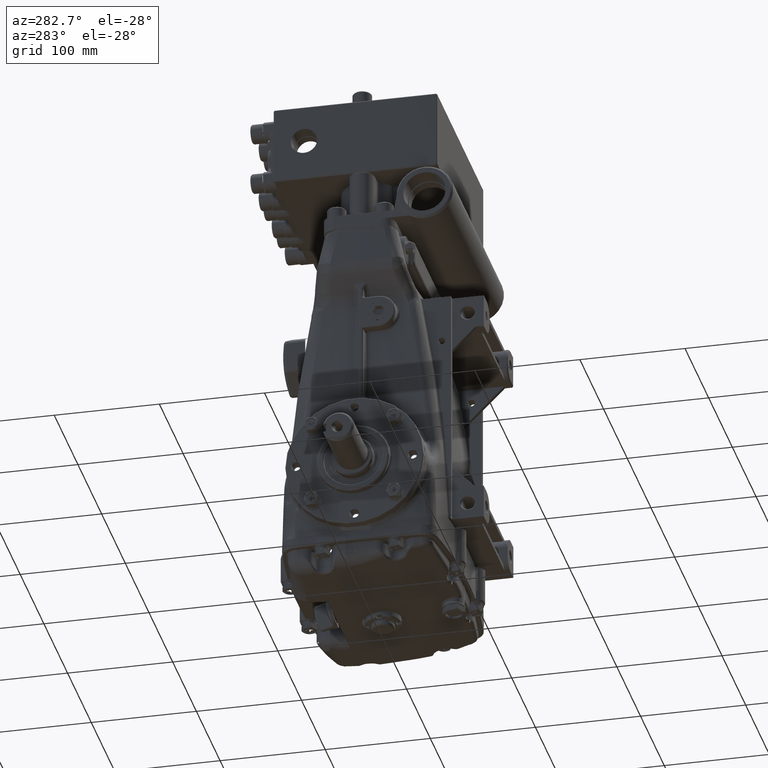
[diagram: clean part render]
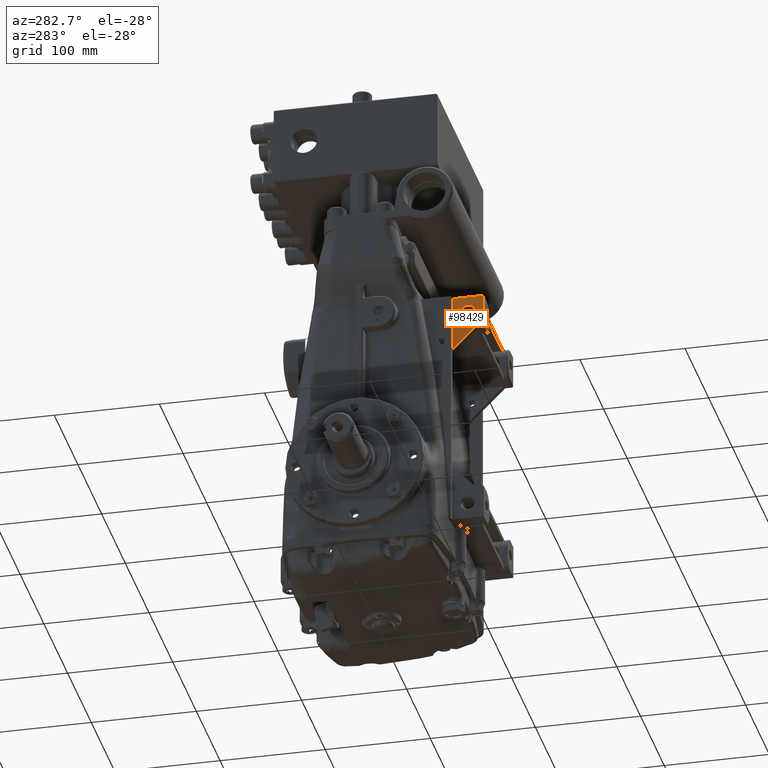
[diagram: same view with one face highlighted and labeled with its STEP entity id]
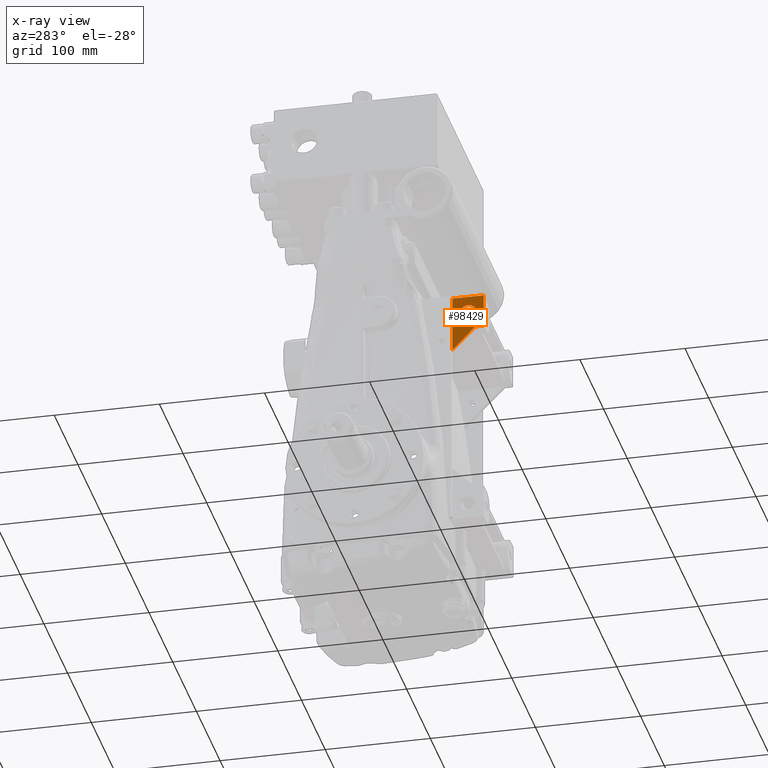
[diagram: x-ray of the same camera — body ghosted, the highlighted face saturated]
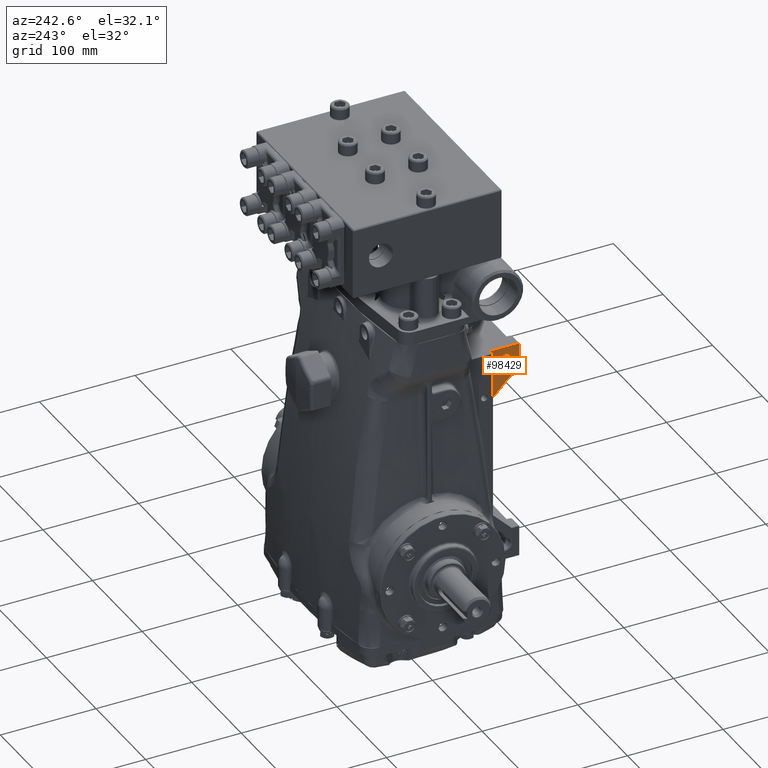
[diagram: same view with one face highlighted and labeled with its STEP entity id]
A machine part, auxiliary view. The second image highlights one B-rep face of the part: STEP entity #98429.
The next image is the same camera in x-ray: the body ghosted, the highlighted face saturated — about 0% of this face is hidden behind the body in this view.
A second angle (auxiliary view) of the same face is appended — the face is thin or edge-on in the first view.
In plain terms, the highlighted planar face has unit normal (1, 0, -0).
Its self-contained STEP definition (entity closure, byte-faithful):
#559 = CIRCLE ( 'NONE', #84390, 0.2952755905511835754 ) ;
#3045 = AXIS2_PLACEMENT_3D ( 'NONE', #100883, #37940, #28499 ) ;
#3377 = VECTOR ( 'NONE', #56254, 39.37007874015748143 ) ;
#5043 = CARTESIAN_POINT ( 'NONE',  ( -2.460629921259842146, -4.015748031495096626, 6.259842519685038909 ) ) ;
#6899 = CARTESIAN_POINT ( 'NONE',  ( -2.460629921259841701, 19685.03937007874265, 7.519685039370078705 ) ) ;
#9830 = DIRECTION ( 'NONE',  ( 1.000000000000000000, 0.000000000000000000, -2.168404344971006649E-16 ) ) ;
#11082 = DIRECTION ( 'NONE',  ( 0.000000000000000000, 0.000000000000000000, -1.000000000000000000 ) ) ;
#12630 = CARTESIAN_POINT ( 'NONE',  ( -2.460629921259841701, -3.740157480314960203, 7.185039370078743381 ) ) ;
#15131 = CIRCLE ( 'NONE', #28586, 0.2952755905511835754 ) ;
#15914 = CARTESIAN_POINT ( 'NONE',  ( -2.460629921259841701, -4.330708661417323135, 7.519685039370078705 ) ) ;
#16074 = EDGE_CURVE ( 'NONE', #47342, #30939, #55712, .T. ) ;
#18343 = EDGE_CURVE ( 'NONE', #41853, #85430, #15131, .T. ) ;
#19809 = EDGE_LOOP ( 'NONE', ( #82258, #37283 ) ) ;
#21651 = FACE_OUTER_BOUND ( 'NONE', #23216, .T. ) ;
#23216 = EDGE_LOOP ( 'NONE', ( #91465, #51589, #92765, #68114, #42954 ) ) ;
#23513 = LINE ( 'NONE', #25599, #100645 ) ;
#25516 = LINE ( 'NONE', #89008, #99954 ) ;
#25599 = CARTESIAN_POINT ( 'NONE',  ( -2.460629921259842590, -4.015748031496062964, 6.259842519685038909 ) ) ;
#28499 = DIRECTION ( 'NONE',  ( -2.168404344971006649E-16, 0.000000000000000000, -1.000000000000000000 ) ) ;
#28586 = AXIS2_PLACEMENT_3D ( 'NONE', #59885, #83003, #11082 ) ;
#29886 = CARTESIAN_POINT ( 'NONE',  ( -2.460629921259842590, -3.149606299212598604, 7.519685039370077817 ) ) ;
#30939 = VERTEX_POINT ( 'NONE', #15914 ) ;
#35411 = CARTESIAN_POINT ( 'NONE',  ( -2.460629921259842590, -3.149606299212598604, 5.393700787402513797 ) ) ;
#37283 = ORIENTED_EDGE ( 'NONE', *, *, #18343, .T. ) ;
#37940 = DIRECTION ( 'NONE',  ( 1.000000000000000000, 0.000000000000000000, -2.168404344971006649E-16 ) ) ;
#41835 = CARTESIAN_POINT ( 'NONE',  ( -2.460629921259842146, 19685.03937007874265, 6.259842519685038909 ) ) ;
#41853 = VERTEX_POINT ( 'NONE', #96268 ) ;
#42954 = ORIENTED_EDGE ( 'NONE', *, *, #94909, .T. ) ;
#47342 = VERTEX_POINT ( 'NONE', #29886 ) ;
#48893 = VECTOR ( 'NONE', #85284, 39.37007874015748143 ) ;
#51589 = ORIENTED_EDGE ( 'NONE', *, *, #86424, .T. ) ;
#53333 = CARTESIAN_POINT ( 'NONE',  ( -2.460629921259842146, -4.330708661417323135, 6.259842519685038909 ) ) ;
#53637 = EDGE_CURVE ( 'NONE', #94836, #101186, #98980, .T. ) ;
#54500 = VECTOR ( 'NONE', #74889, 39.37007874015748143 ) ;
#54672 = PLANE ( 'NONE',  #3045 ) ;
#55411 = VERTEX_POINT ( 'NONE', #35411 ) ;
#55712 = LINE ( 'NONE', #6899, #3377 ) ;
#56254 = DIRECTION ( 'NONE',  ( -0.000000000000000000, -1.000000000000000000, -0.000000000000000000 ) ) ;
#57597 = DIRECTION ( 'NONE',  ( 0.000000000000000000, 0.7071067811869320430, -0.7071067811861627694 ) ) ;
#58795 = EDGE_CURVE ( 'NONE', #85430, #41853, #559, .T. ) ;
#59665 = CARTESIAN_POINT ( 'NONE',  ( -2.460629921259841701, -3.740157480314960203, 6.889763779527560139 ) ) ;
#59885 = CARTESIAN_POINT ( 'NONE',  ( -2.460629921259841701, -3.740157480314960203, 6.889763779527560139 ) ) ;
#68114 = ORIENTED_EDGE ( 'NONE', *, *, #53637, .T. ) ;
#69217 = EDGE_CURVE ( 'NONE', #94836, #55411, #23513, .T. ) ;
#70434 = FACE_BOUND ( 'NONE', #19809, .T. ) ;
#74889 = DIRECTION ( 'NONE',  ( -0.000000000000000000, -1.000000000000000000, -0.000000000000000000 ) ) ;
#76915 = CARTESIAN_POINT ( 'NONE',  ( -2.460629921259842590, -3.149606299212598604, -1.614173228346456268 ) ) ;
#77435 = LINE ( 'NONE', #76915, #48893 ) ;
#82258 = ORIENTED_EDGE ( 'NONE', *, *, #58795, .T. ) ;
#83003 = DIRECTION ( 'NONE',  ( 1.000000000000000000, 0.000000000000000000, -2.168404344971006649E-16 ) ) ;
#84390 = AXIS2_PLACEMENT_3D ( 'NONE', #59665, #9830, #91679 ) ;
#85284 = DIRECTION ( 'NONE',  ( -0.000000000000000000, -0.000000000000000000, -1.000000000000000000 ) ) ;
#85430 = VERTEX_POINT ( 'NONE', #12630 ) ;
#86424 = EDGE_CURVE ( 'NONE', #47342, #55411, #77435, .T. ) ;
#89008 = CARTESIAN_POINT ( 'NONE',  ( -2.460629921259841701, -4.330708661417323135, 7.519685039370078705 ) ) ;
#91465 = ORIENTED_EDGE ( 'NONE', *, *, #16074, .F. ) ;
#91679 = DIRECTION ( 'NONE',  ( 0.000000000000000000, 0.000000000000000000, -1.000000000000000000 ) ) ;
#92471 = DIRECTION ( 'NONE',  ( 2.168404344971007142E-16, -0.000000000000000000, 1.000000000000000000 ) ) ;
#92765 = ORIENTED_EDGE ( 'NONE', *, *, #69217, .F. ) ;
#94836 = VERTEX_POINT ( 'NONE', #5043 ) ;
#94909 = EDGE_CURVE ( 'NONE', #101186, #30939, #25516, .T. ) ;
#96268 = CARTESIAN_POINT ( 'NONE',  ( -2.460629921259841701, -3.740157480314960203, 6.594488188976376009 ) ) ;
#98429 = ADVANCED_FACE ( 'NONE', ( #70434, #21651 ), #54672, .F. ) ;
#98980 = LINE ( 'NONE', #41835, #54500 ) ;
#99954 = VECTOR ( 'NONE', #92471, 39.37007874015748143 ) ;
#100645 = VECTOR ( 'NONE', #57597, 39.37007874015748854 ) ;
#100883 = CARTESIAN_POINT ( 'NONE',  ( -2.460629921259841701, 19685.03937007874265, 7.519685039370078705 ) ) ;
#101186 = VERTEX_POINT ( 'NONE', #53333 ) ;